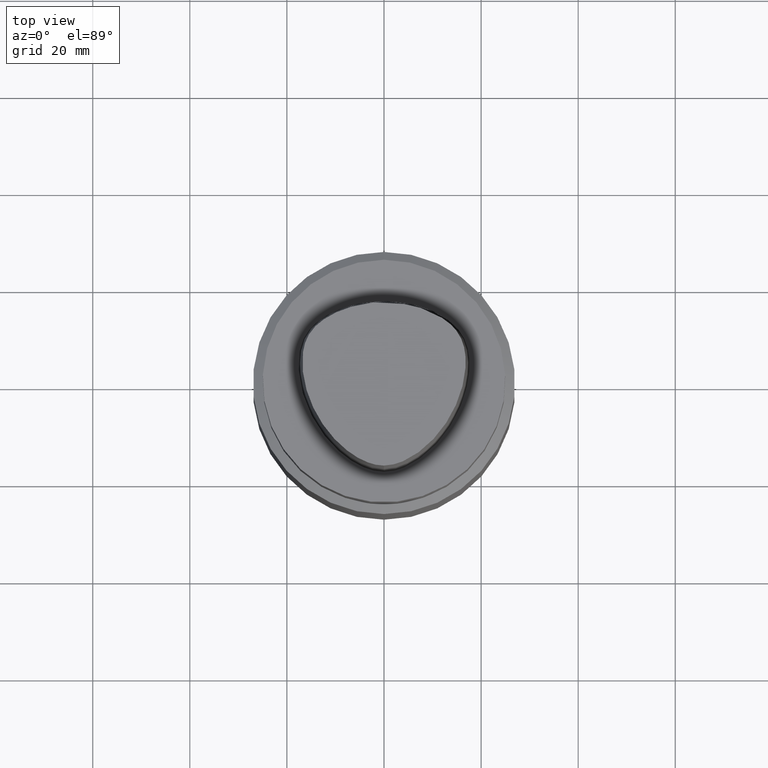
[diagram: clean part render]
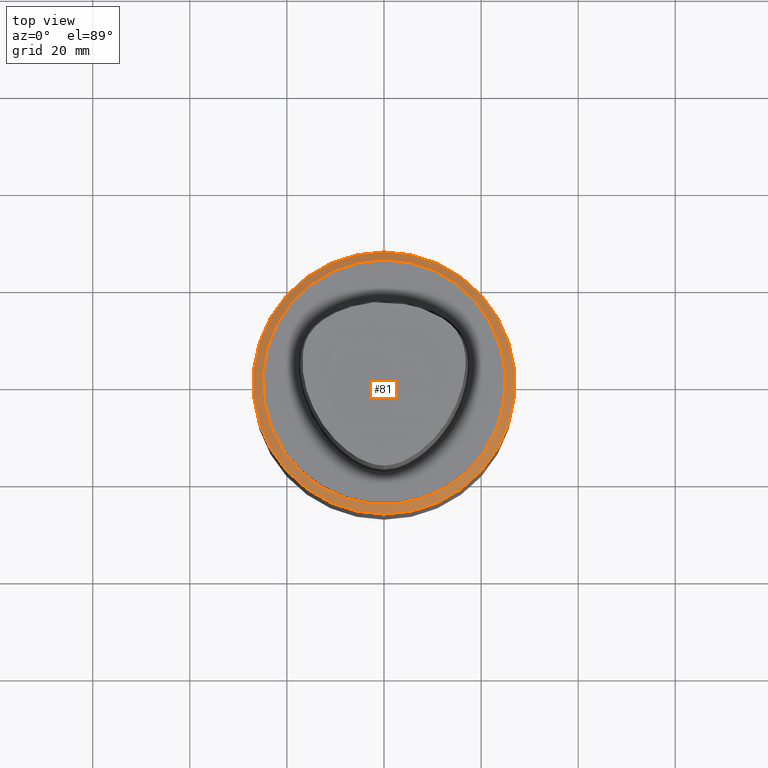
[diagram: same view with one face highlighted and labeled with its STEP entity id]
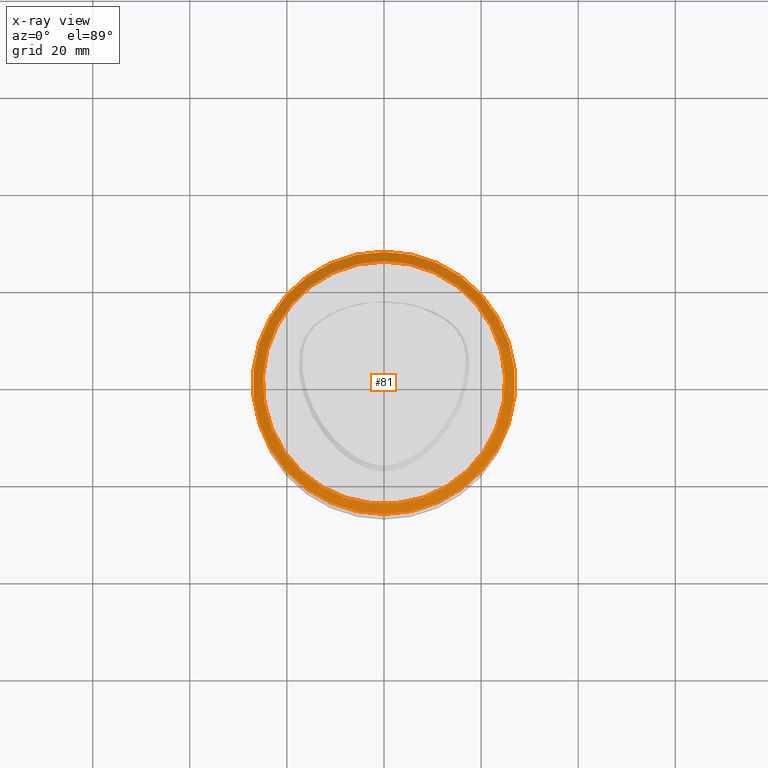
[diagram: x-ray of the same camera — body ghosted, the highlighted face saturated]
A machine part, top view. The second image highlights one B-rep face of the part: STEP entity #81.
The next image is the same camera in x-ray: the body ghosted, the highlighted face saturated — about 6% of this face is hidden behind the body in this view.
In plain terms, the highlighted conical surface has half-angle 60 deg.
Its self-contained STEP definition (entity closure, byte-faithful):
#81=ADVANCED_FACE('',(#99,#100),#101,.T.);
#99=FACE_BOUND('',#503,.T.);
#100=FACE_BOUND('',#504,.T.);
#101=CONICAL_SURFACE('',#505,25.995,1.04719754944643);
#503=EDGE_LOOP('',(#536));
#504=EDGE_LOOP('',(#537));
#505=AXIS2_PLACEMENT_3D('',#538,#539,#540);
#536=ORIENTED_EDGE('',*,*,#553,.F.);
#537=ORIENTED_EDGE('',*,*,#552,.T.);
#538=CARTESIAN_POINT('',(1.38935772614473E-015,2.77871545228945E-015,-22.6899335728808));
#539=DIRECTION('',(6.12323399573677E-017,1.22464679914735E-016,-1.0));
#540=DIRECTION('',(-1.23259516440783E-032,1.0,1.22464679914735E-016));
#552=EDGE_CURVE('',#565,#565,#566,.T.);
#553=EDGE_CURVE('',#567,#567,#568,.T.);
#565=VERTEX_POINT('',#726);
#566=CIRCLE('',#727,27.0);
#567=VERTEX_POINT('',#728);
#568=CIRCLE('',#729,24.99);
#726=CARTESIAN_POINT('',(1.42488699678561E-015,27.0,-23.2701705957616));
#727=AXIS2_PLACEMENT_3D('',#739,#740,#741);
#728=CARTESIAN_POINT('',(1.35382845550384E-015,24.99,-22.10969655));
#729=AXIS2_PLACEMENT_3D('',#742,#743,#744);
#739=CARTESIAN_POINT('',(1.42488699678561E-015,2.84977399357123E-015,-23.2701705957616));
#740=DIRECTION('',(-6.12323399573677E-017,-1.22464679914735E-016,1.0));
#741=DIRECTION('',(-1.23259516440783E-032,1.0,1.22464679914735E-016));
#742=CARTESIAN_POINT('',(1.35382845550384E-015,2.70765691100768E-015,-22.10969655));
#743=DIRECTION('',(-6.12323399573677E-017,-1.22464679914735E-016,1.0));
#744=DIRECTION('',(-1.23259516440783E-032,1.0,1.22464679914735E-016));